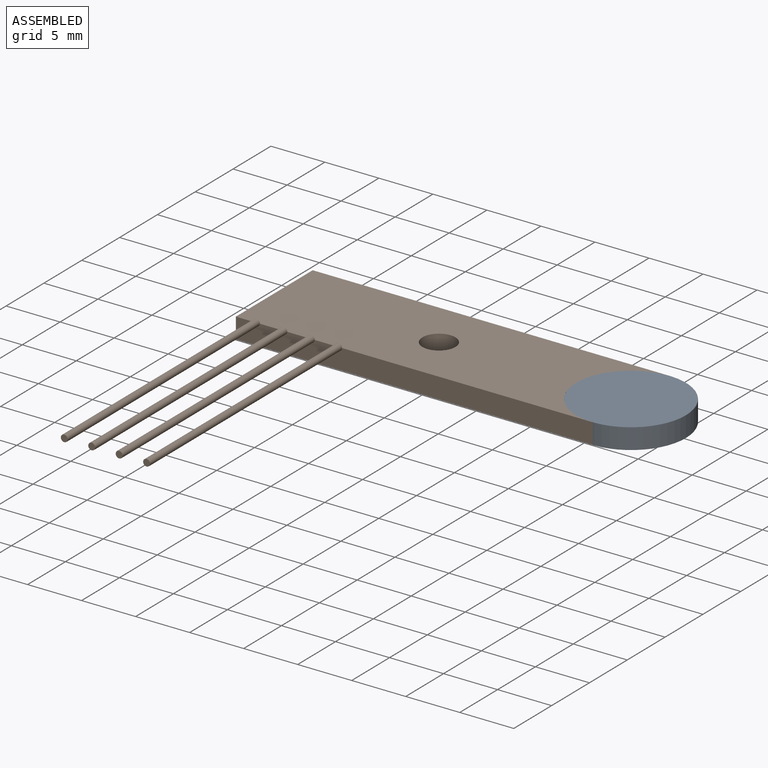
[diagram: assembled view]
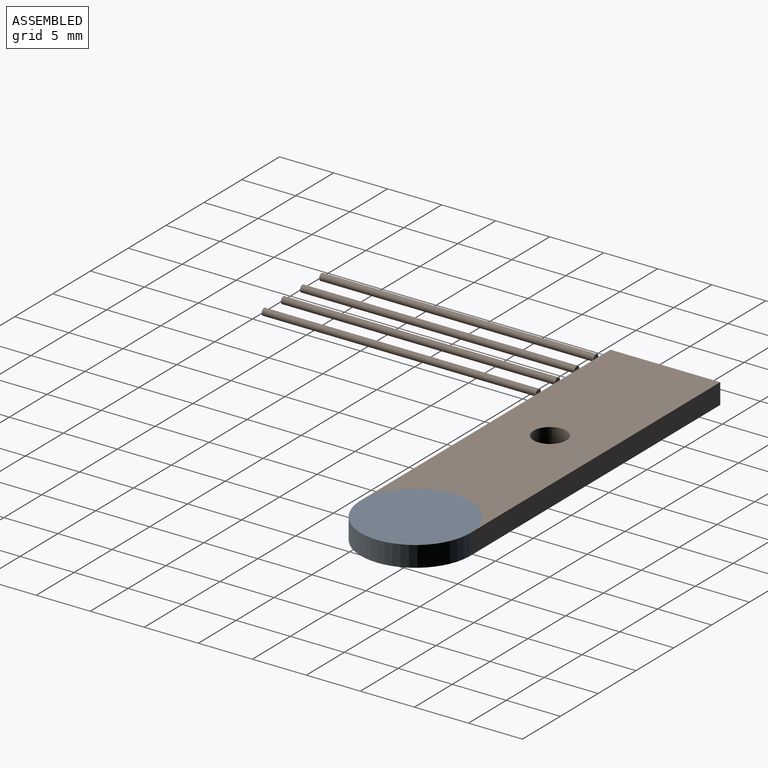
[diagram: assembled view, second angle]
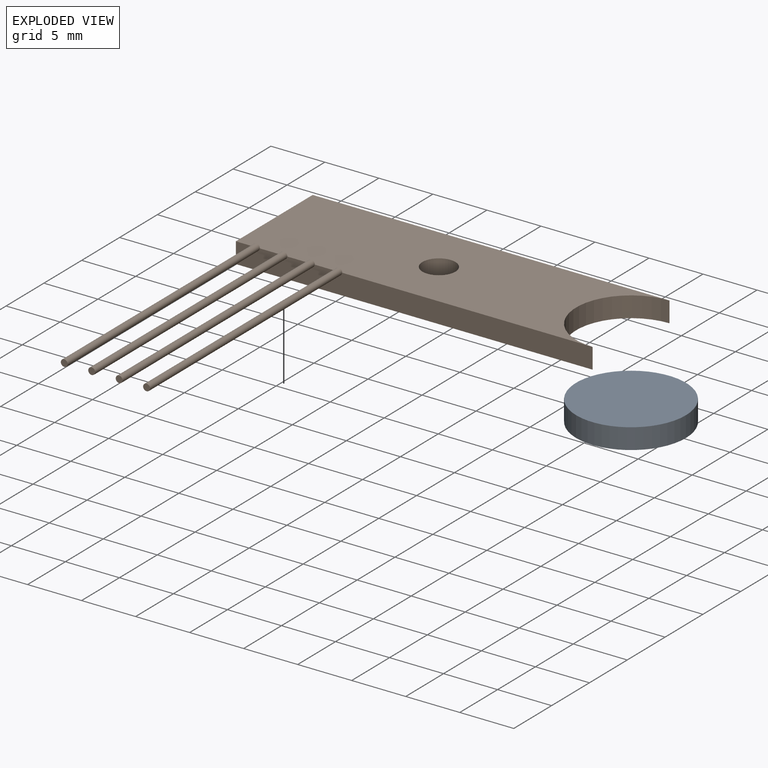
[diagram: exploded view]
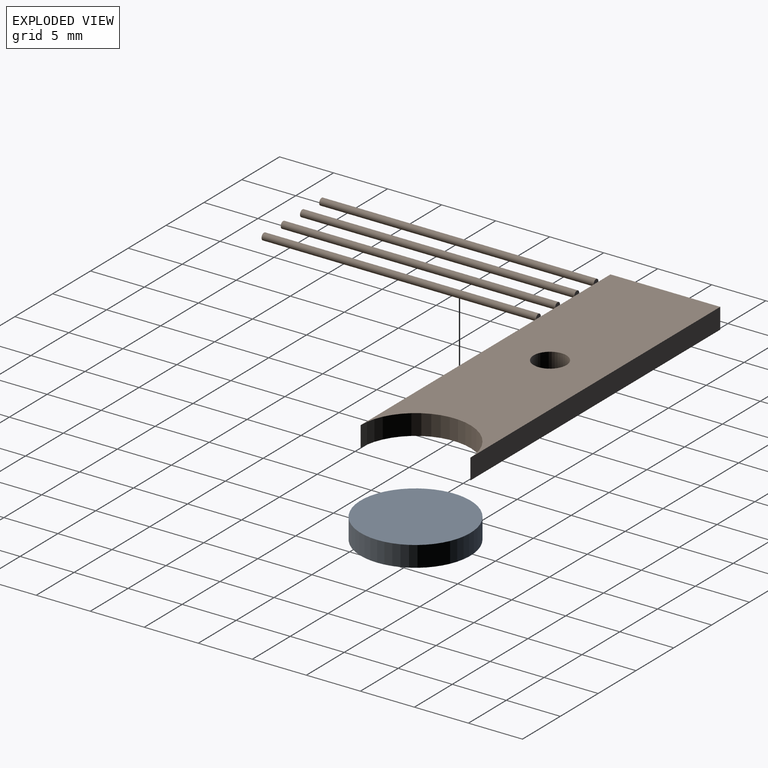
[diagram: exploded view, second angle]
ASSEMBLY  parts=2 mates=2
PART A: 3 faces, bbox 10.2x10.2x1.9 mm
  f0: cylinder r=5.08mm len=10.16mm, axis (0,0,-1), area 60.8mm2, adj f1,f2
  f1: plane 10.16x10.16mm, normal (0,0,1), area 81.1mm2, adj f0
  f2: plane 10.16x10.16mm, normal (0,0,-1), area 81.1mm2, adj f0
PART B: 19 faces, bbox 33x2.2x35.6 mm
  f0: plane 33.02x1.91mm, normal (0,0,-1), area 62.3mm2, adj f2,f4,f5,f7,f10,f13,f16,f18
  f1: plane 33.02x1.91mm, normal (0,0,1), area 62.9mm2, adj f2,f4,f5,f18
  f2: plane 10.16x1.91mm, normal (-1,0,0), area 19.4mm2, adj f0,f1,f4,f5
  f3: cylinder r=1.52mm len=3.05mm, axis (0,1,0), area 18.2mm2, adj f4,f5
  f4: plane 33.02x10.16mm, normal (0,-1,0), area 287.7mm2, adj f0,f1,f2,f3,f6,f9,f12,f15
  f5: plane 33.02x10.16mm, normal (0,1,0), area 287.7mm2, adj f0,f1,f2,f3,f18
  f6: plane 0.64x0.34mm, normal (0,0,1), area 0.2mm2, adj f4,f7
  f7: cylinder r=0.32mm len=25.4mm, axis (0,0,1), area 50.7mm2, adj f0,f6,f8
  f8: plane 0.64x0.64mm, normal (0,0,-1), area 0.3mm2, adj f7
  f9: plane 0.64x0.34mm, normal (0,0,1), area 0.2mm2, adj f4,f10
  f10: cylinder r=0.32mm len=25.4mm, axis (0,0,1), area 50.7mm2, adj f0,f9,f11
  f11: plane 0.64x0.64mm, normal (0,0,-1), area 0.3mm2, adj f10
  f12: plane 0.64x0.34mm, normal (0,0,1), area 0.2mm2, adj f4,f13
  f13: cylinder r=0.32mm len=25.4mm, axis (0,0,1), area 50.7mm2, adj f0,f12,f14
  f14: plane 0.64x0.64mm, normal (0,0,-1), area 0.3mm2, adj f13
  f15: plane 0.64x0.34mm, normal (0,0,1), area 0.2mm2, adj f4,f16
  f16: cylinder r=0.32mm len=25.4mm, axis (0,0,1), area 50.7mm2, adj f0,f15,f17
  f17: plane 0.64x0.64mm, normal (0,0,-1), area 0.3mm2, adj f16
  f18: cylinder r=5.08mm len=10.16mm, axis (0,1,0), area 30.4mm2, adj f0,f1,f4,f5
PLACE A t=(-3.31,-1.21,2)mm
PLACE B rot(axis=(-1,0,0),90deg) t=(-3.31,-1.21,2)mm
MATE planar B.f4 <-> A.f0  axis (0,0,1) through (-14.9,-6.29,3.9)mm
MATE cylindrical B.f18 <-> A.f0  axis (0,0,-1) through (-3.31,-1.21,2)mm
